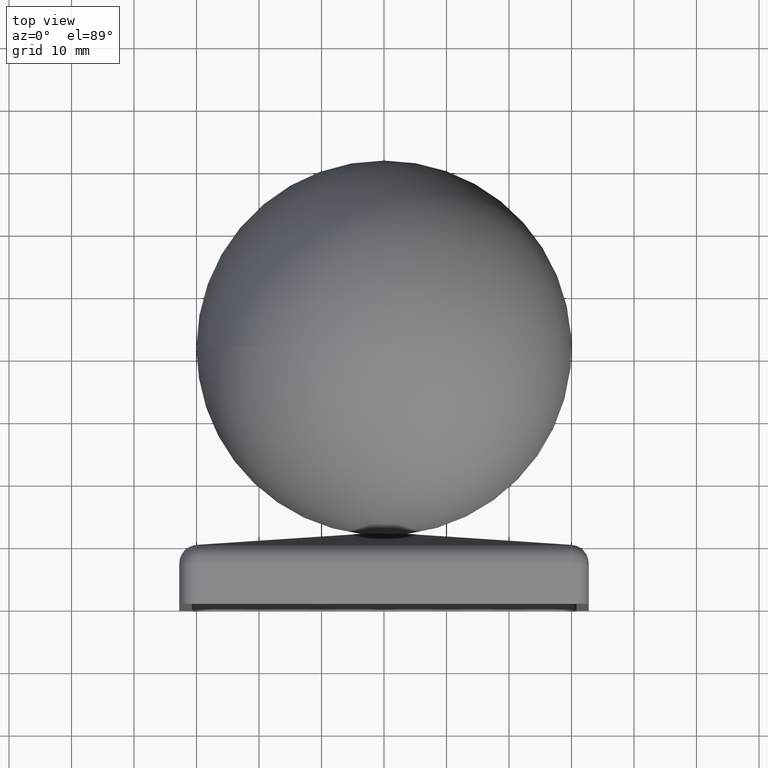
[diagram: clean part render]
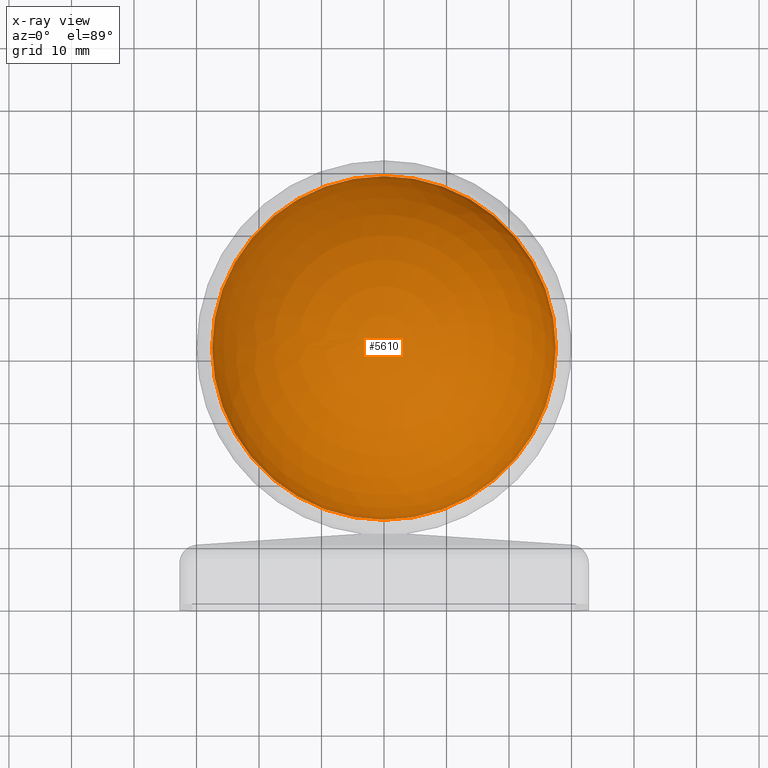
[diagram: x-ray — body ghosted, one internal face saturated and labeled with its STEP entity id]
A machine part, top view, then the same camera in x-ray: the body is ghosted and one INTERNAL B-rep face — a face not visible from any outside direction — is saturated and labeled: STEP entity #5610.
In plain terms, the highlighted spherical surface has radius 27.5 mm.
Its self-contained STEP definition (entity closure, byte-faithful):
#335 = DIRECTION ( 'NONE',  ( -1.000000000000000000, 0.0000000000000000000, 0.0000000000000000000 ) ) ;
#686 = EDGE_LOOP ( 'NONE', ( #12268, #5326 ) ) ;
#1055 = CIRCLE ( 'NONE', #9086, 27.50000000000000400 ) ;
#1671 = CARTESIAN_POINT ( 'NONE',  ( 0.0000000000000000000, 41.50000000000000000, 0.0000000000000000000 ) ) ;
#2641 = DIRECTION ( 'NONE',  ( -1.224646799147353200E-016, 6.520694707225454100E-034, 1.000000000000000000 ) ) ;
#3157 = EDGE_CURVE ( 'NONE', #7851, #16676, #1055, .T. ) ;
#5326 = ORIENTED_EDGE ( 'NONE', *, *, #6989, .T. ) ;
#5582 = DIRECTION ( 'NONE',  ( 0.0000000000000000000, 0.0000000000000000000, 1.000000000000000000 ) ) ;
#5610 = ADVANCED_FACE ( 'NONE', ( #8183 ), #11382, .F. ) ;
#6178 = CARTESIAN_POINT ( 'NONE',  ( 0.0000000000000000000, 41.50000000000000000, 0.0000000000000000000 ) ) ;
#6623 = CARTESIAN_POINT ( 'NONE',  ( 0.0000000000000000000, 41.50000000000000000, 0.0000000000000000000 ) ) ;
#6922 = AXIS2_PLACEMENT_3D ( 'NONE', #1671, #5582, #335 ) ;
#6989 = EDGE_CURVE ( 'NONE', #7851, #16676, #14522, .T. ) ;
#7851 = VERTEX_POINT ( 'NONE', #8043 ) ;
#8043 = CARTESIAN_POINT ( 'NONE',  ( -1.830314509595228700E-015, 13.99999999999999800, 0.0000000000000000000 ) ) ;
#8183 = FACE_OUTER_BOUND ( 'NONE', #686, .T. ) ;
#9086 = AXIS2_PLACEMENT_3D ( 'NONE', #6623, #2641, #9214 ) ;
#9214 = DIRECTION ( 'NONE',  ( 1.000000000000000000, 0.0000000000000000000, 1.224646799147353500E-016 ) ) ;
#10544 = CARTESIAN_POINT ( 'NONE',  ( -1.537464188059992800E-015, 69.00000000000000000, 0.0000000000000000000 ) ) ;
#11382 = SPHERICAL_SURFACE ( 'NONE', #6922, 27.50000000000000400 ) ;
#12268 = ORIENTED_EDGE ( 'NONE', *, *, #3157, .F. ) ;
#12723 = DIRECTION ( 'NONE',  ( -1.000000000000000000, 0.0000000000000000000, 0.0000000000000000000 ) ) ;
#14160 = AXIS2_PLACEMENT_3D ( 'NONE', #6178, #16664, #12723 ) ;
#14522 = CIRCLE ( 'NONE', #14160, 27.50000000000000400 ) ;
#16664 = DIRECTION ( 'NONE',  ( -0.0000000000000000000, 0.0000000000000000000, -1.000000000000000000 ) ) ;
#16676 = VERTEX_POINT ( 'NONE', #10544 ) ;